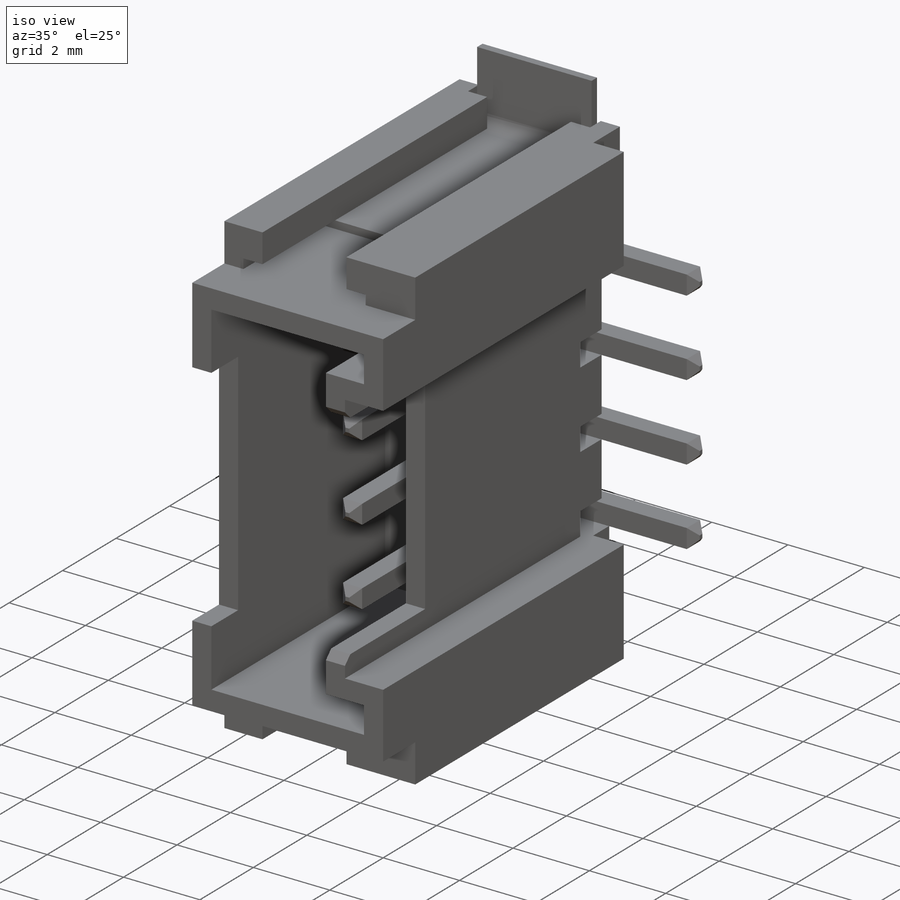
[diagram: iso view]
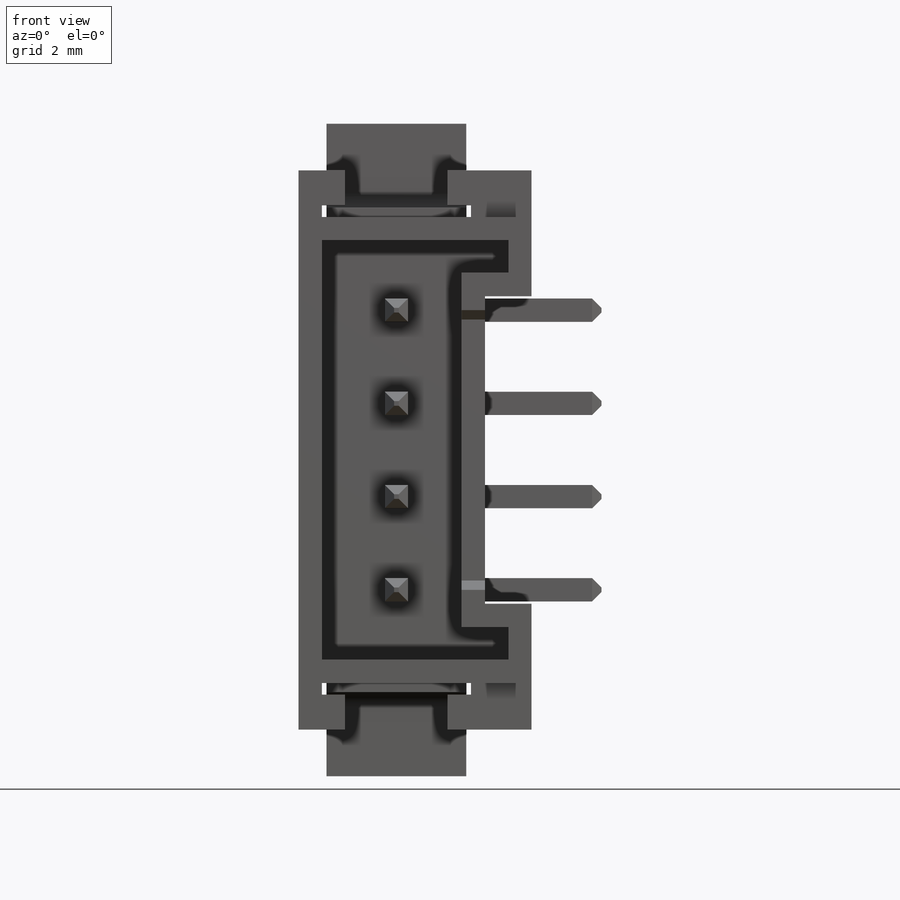
[diagram: front view]
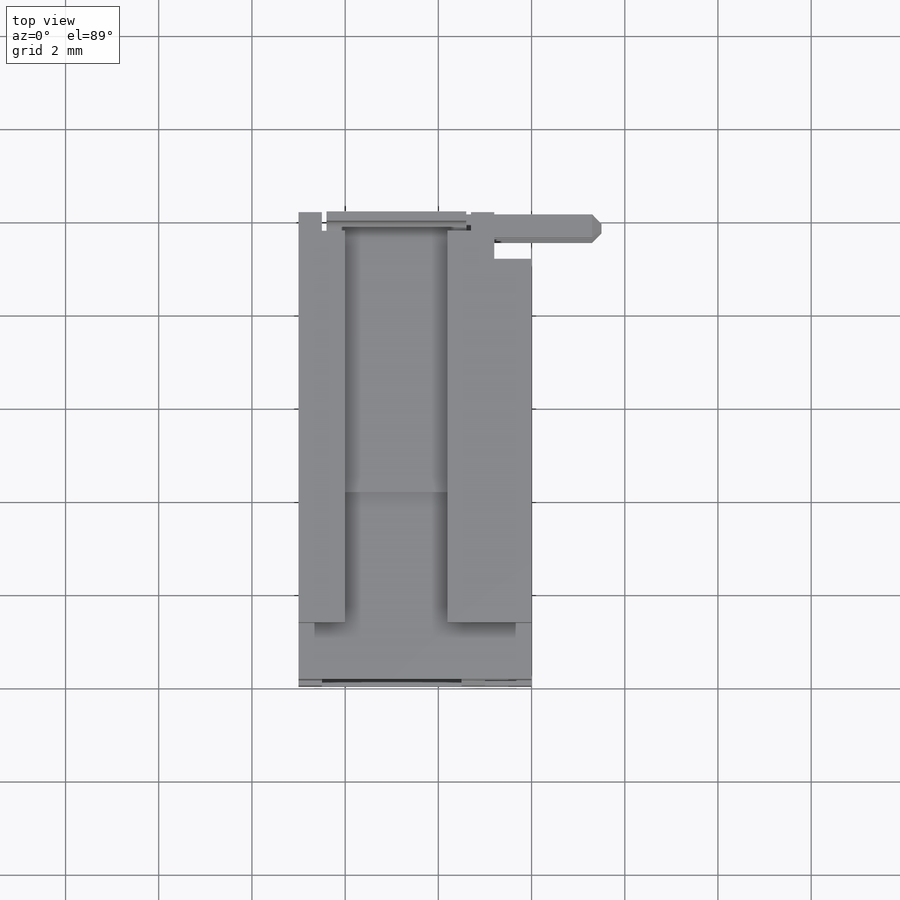
[diagram: top view]
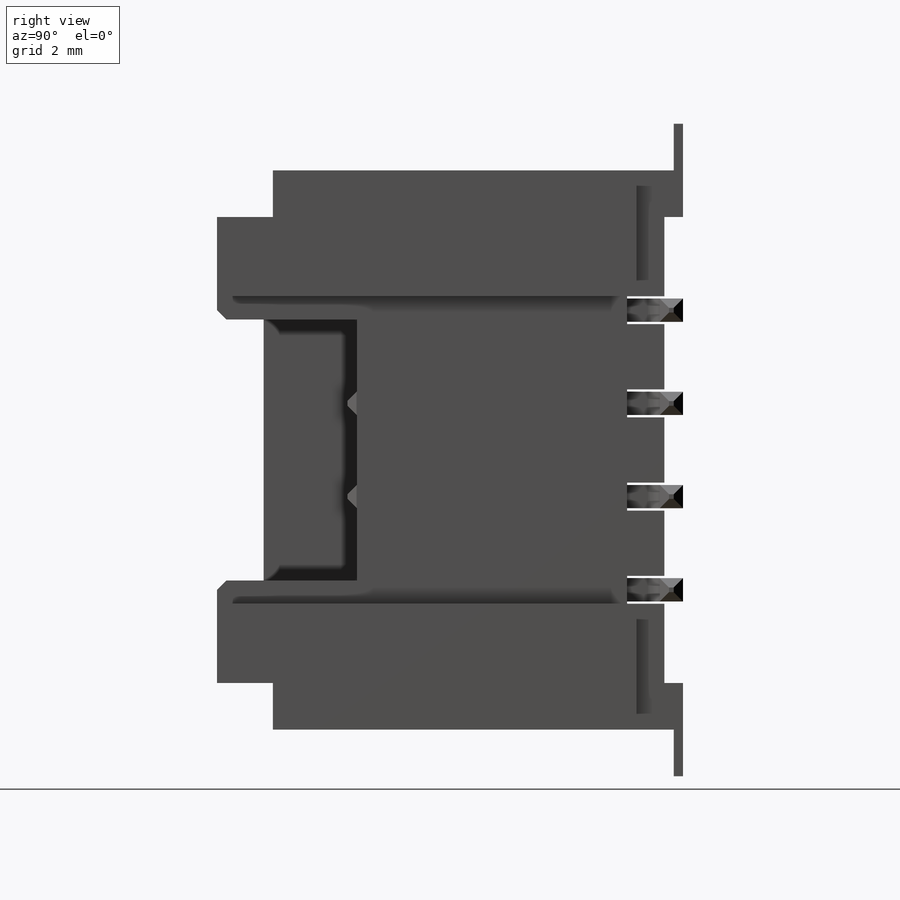
[diagram: right view]
SOLIDWORKS PART (.sldprt)
format: sldprt  version: not decoded by parser v0  size: 530,432 bytes
history: native  units: mm
features: sketch x8, cut_extrude x5, plane x3, chamfer x2, pattern_linear x2, material x1, extrude x1, mirror x1 (+8 scaffold rows collapsed)
feature tree (31):
  scaffold x8  (default folders/planes/origin — collapsed)
  material  "Matériau <non spécifié>"
  plane  "Plan de face"
  plane  "Plan de dessus"
  plane  "Plan de droite"
  sketch  "Esquisse1"  dims[c1.D1=~106.874317mm c1.D2=2.2mm c1.D3=3.2mm c1.D4=0.25mm c1.D5=6.6mm c1.D6=1.0mm c1.D7=1.0mm c2.D1=6.0mm c2.D8=5.0mm c2.D5=2.7mm c2.D9=1.0mm]
  extrude  "Boss.-Extru.1"  Depth=10mm
  sketch  "Esquisse4"  dims[c1.D2=0.5mm c1.D3=0.5mm c1.D4=1.5mm c1.D1=0.5mm c2.D2=0.5mm]
  cut_extrude  "Enlèv. mat.-Extru.1"  Depth=6.5mm
  sketch  "Esquisse5"  dims[D1=1.0mm D2=2.0mm]
  cut_extrude  "Enlèv. mat.-Extru.2"  [1 undecoded]
  sketch  "Esquisse6"  dims[D1=3.0mm D2=2.2mm]
  cut_extrude  "Enlèv. mat.-Extru.3"  [1 undecoded]
  chamfer  "Chanfrein1"  Distance=0.2mm Angle=45deg
  sketch  "Esquisse7"  dims[c1.D1=1.2mm c1.D2=0.4mm c1.D3=1.0mm c2.D2=0.4mm c2.D3=1.0mm c2.D4=0.7mm c2.D5=0.6mm c2.D6=2.0mm c2.D7=1.2mm]
  cut_extrude  "Enlèv. mat.-Extru.4"  [1 undecoded]
  sketch  "Esquisse8"  dims[D1=1.0mm D2=0.8mm]
  cut_extrude  "Enlèv. mat.-Extru.5"  [1 undecoded]
  sketch  "Esquisse9"  dims[c1.D1=0.5mm c1.D2=0.25mm c1.D3=1.6mm c1.D4=2.8mm c1.D5=6.5mm c2.D1=0.5mm c2.D19=3.0mm c2.D5=0.5mm c2.D6=1.0mm c2.D7=5.0mm]
  chamfer  "Chanfrein2"  Distance=0.2mm Angle=45deg
  pattern_linear  "Répétition linéaire1"  Count1=4 Count2=1 Spacing1=2mm Spacing2=10mm
  sketch  "Esquisse10"  dims[D3=0.5mm D1=1.0mm D2=4.0mm]
  pattern_linear  "Extru.-Mince2"  Spacing1=3mm Spacing2=0.1mm  [1 undecoded]
  mirror  "Symétrie3"
decode coverage: 14 of 19 modeling features carry decoded parameters
note: ~ marks probable driven/reference dimensions
note: 5 parameter values undecoded
summary: no parameter record found for 4 features
note: suppression state not decoded; provenance and decode notes live in map.json
